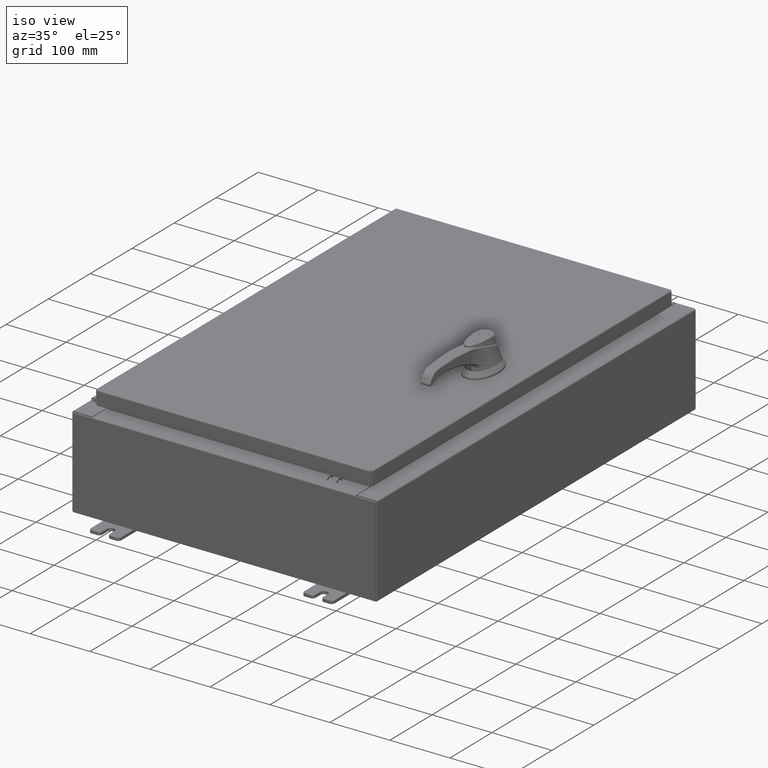
[diagram: clean part render]
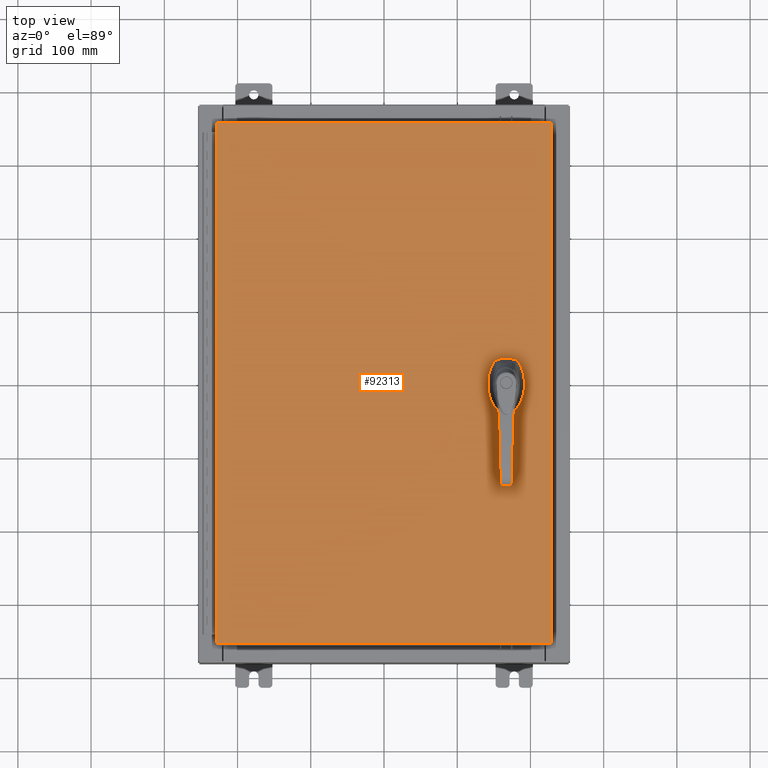
[diagram: tour spotlight — one face highlighted and labeled with its STEP entity id]
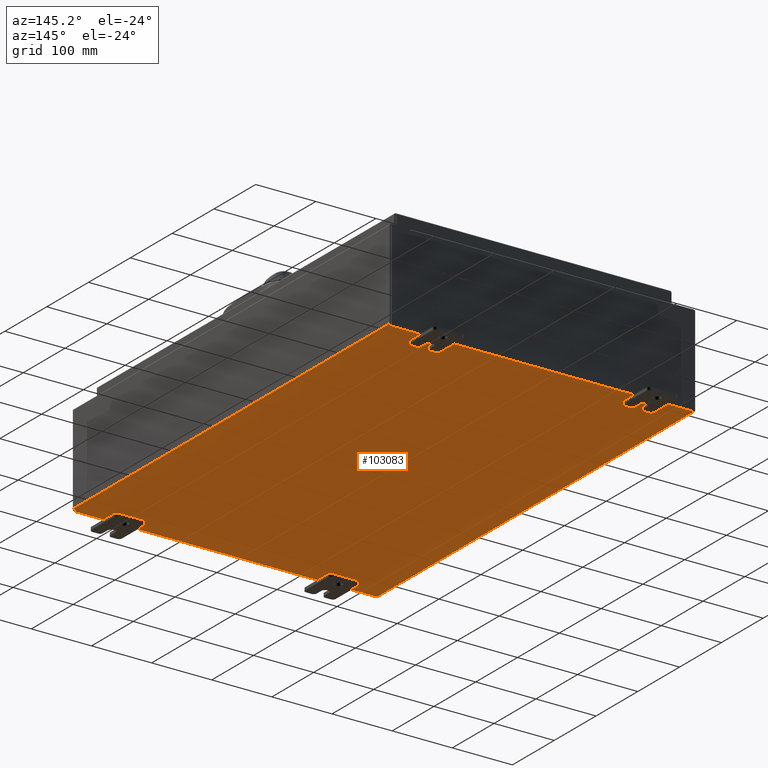
[diagram: tour spotlight — one face highlighted and labeled with its STEP entity id]
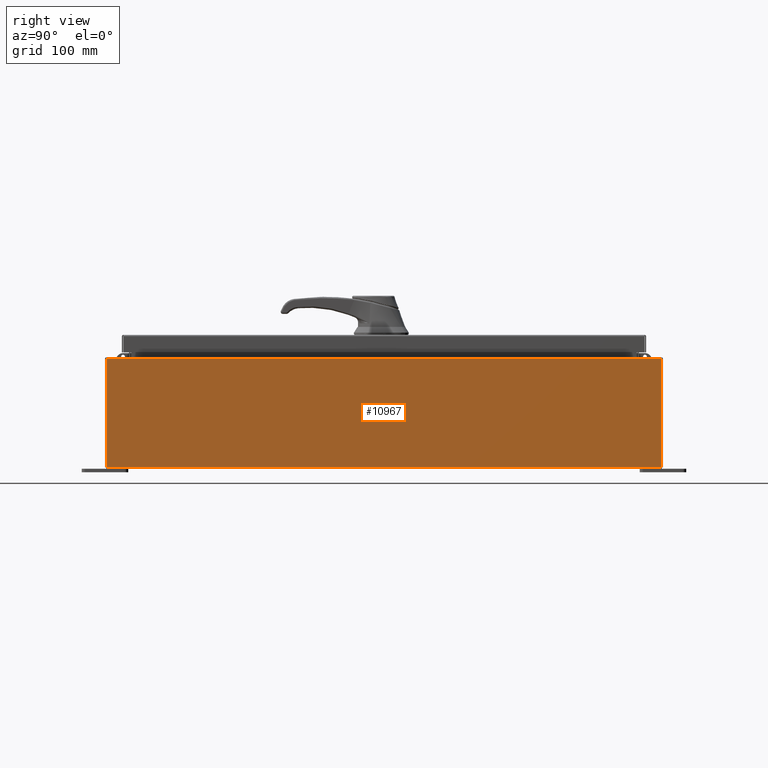
[diagram: tour spotlight — one face highlighted and labeled with its STEP entity id]
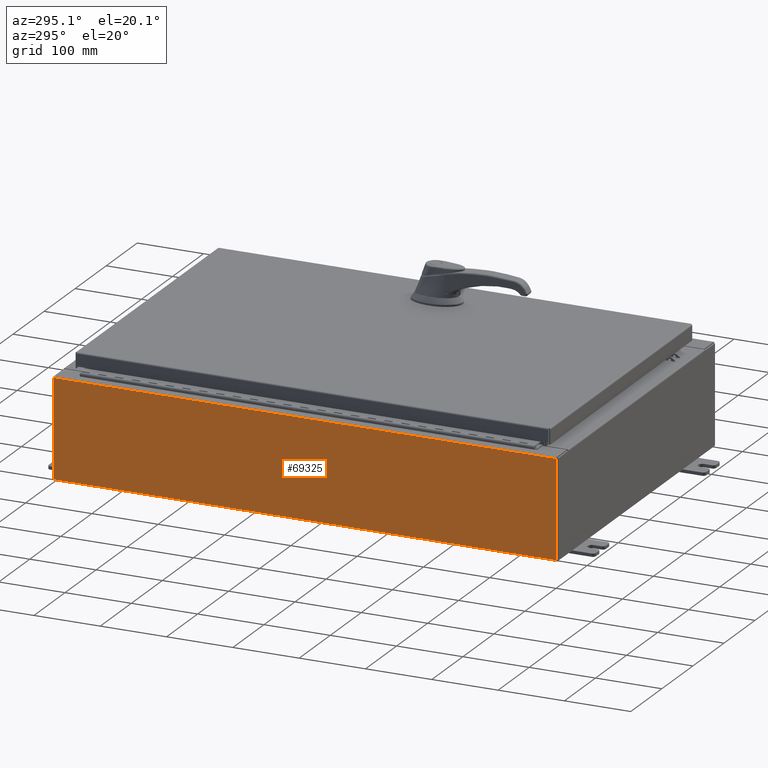
[diagram: tour spotlight — one face highlighted and labeled with its STEP entity id]
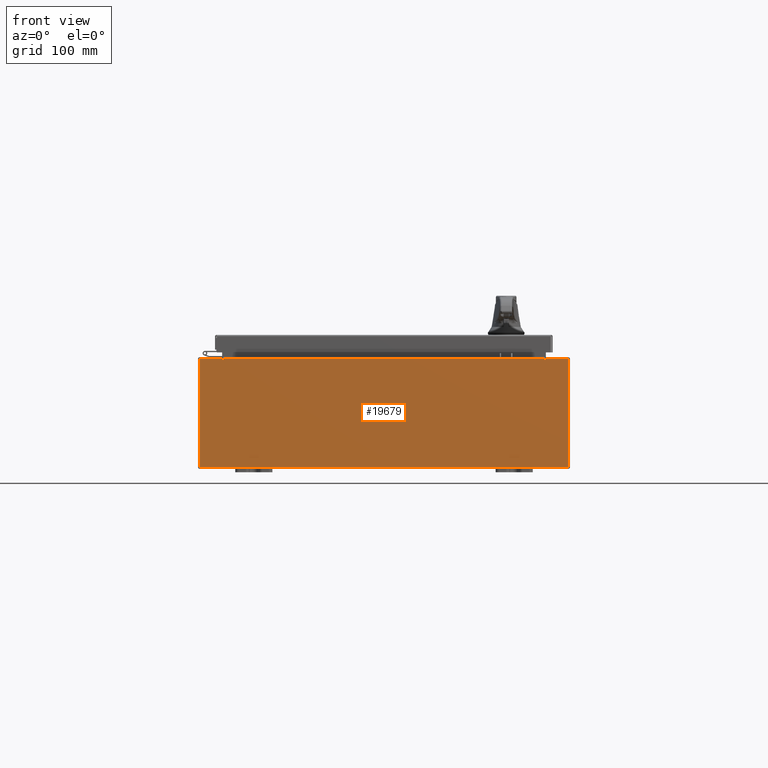
[diagram: tour spotlight — one face highlighted and labeled with its STEP entity id]
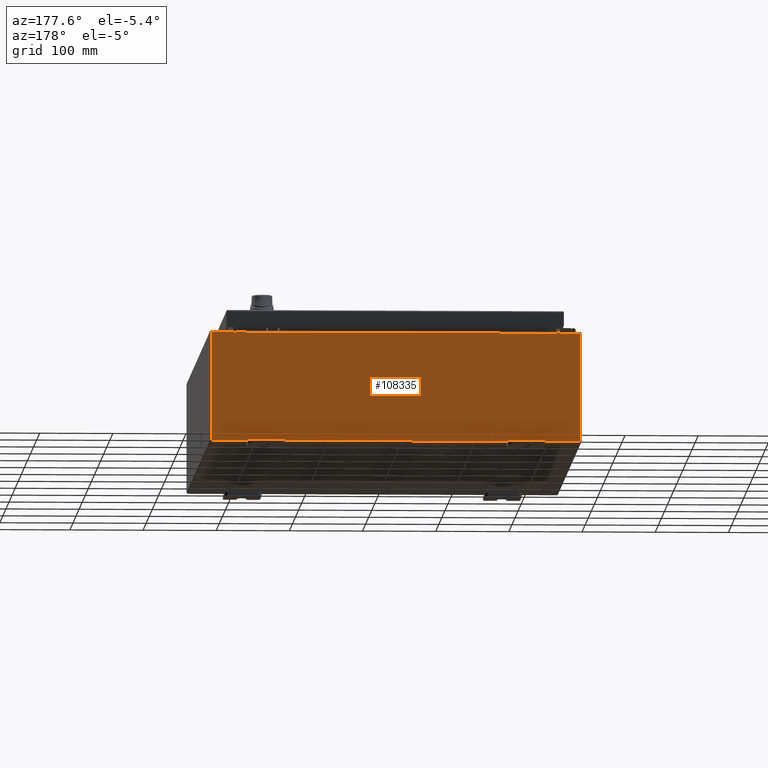
[diagram: tour spotlight — one face highlighted and labeled with its STEP entity id]
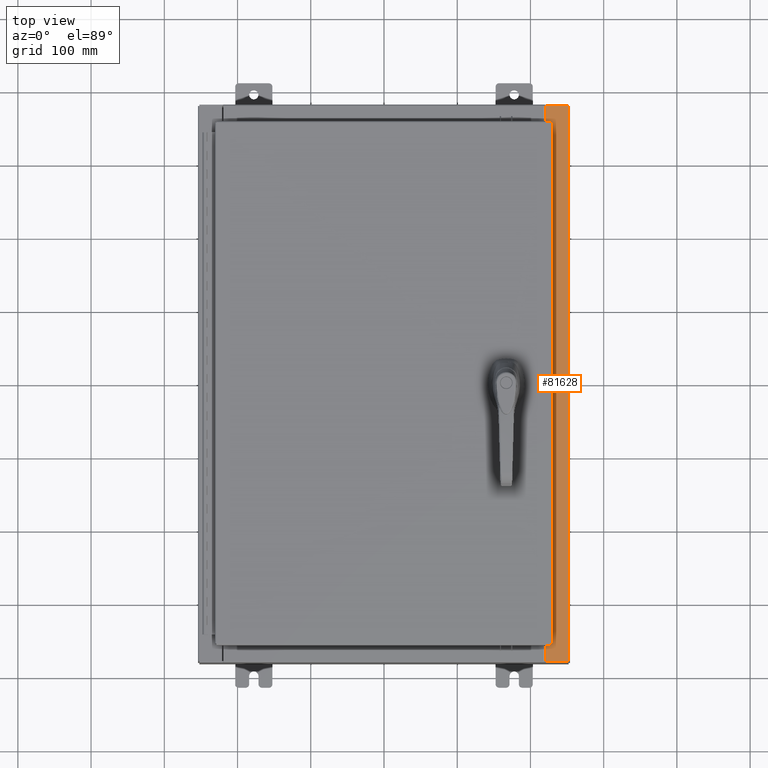
[diagram: tour spotlight — one face highlighted and labeled with its STEP entity id]
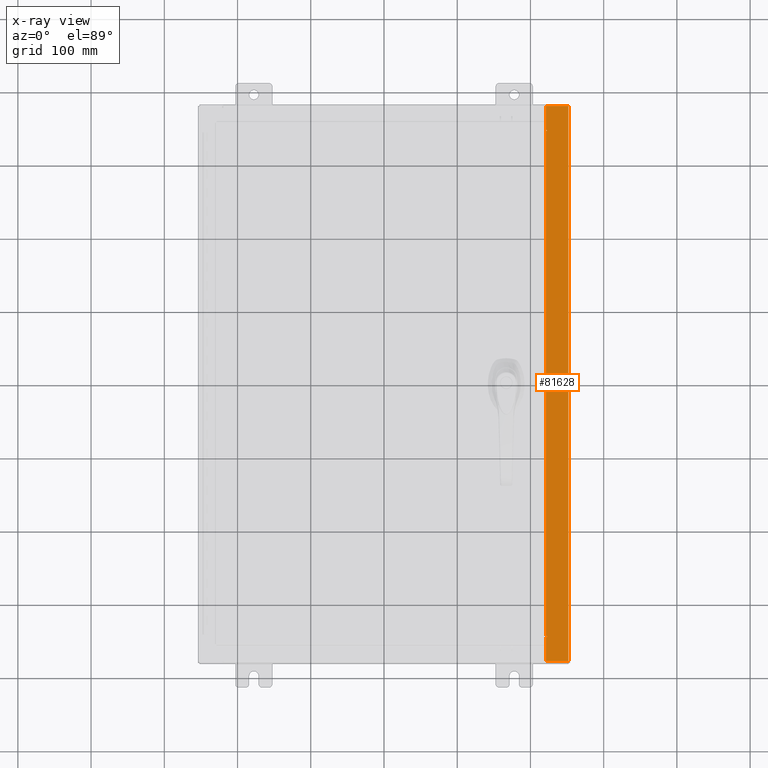
[diagram: x-ray of the same camera — body ghosted, this tour face saturated]
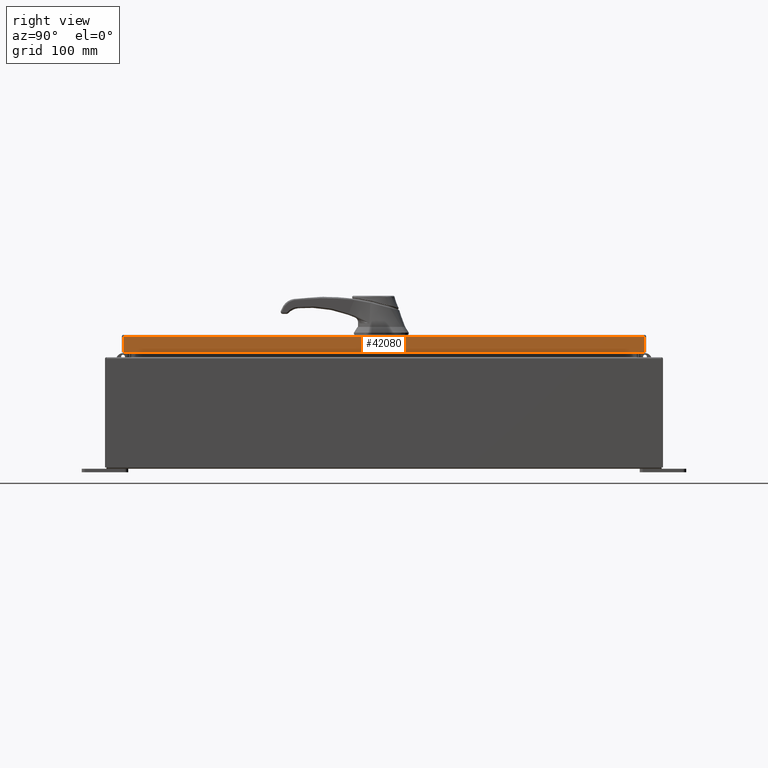
[diagram: tour spotlight — one face highlighted and labeled with its STEP entity id]
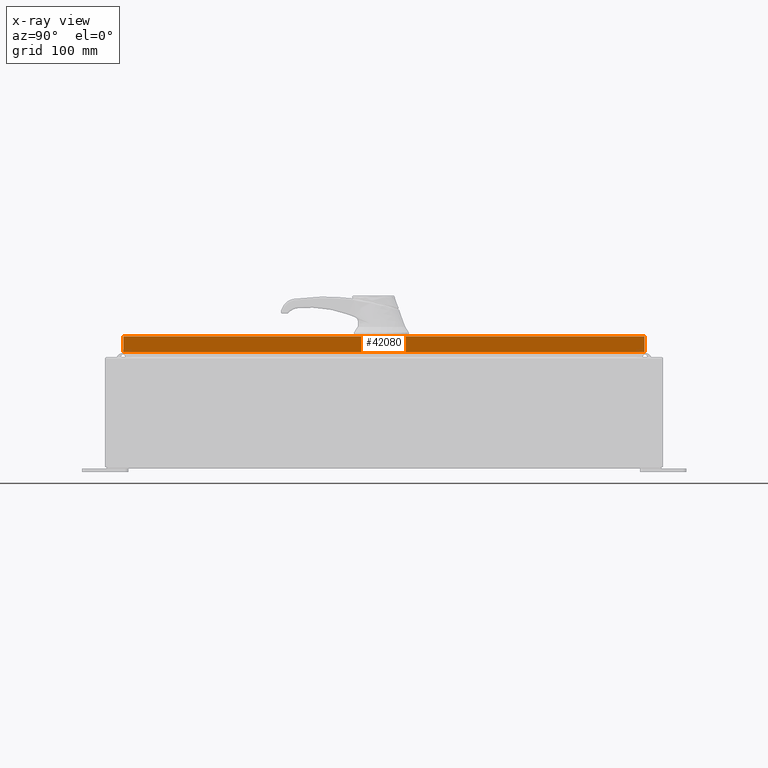
[diagram: x-ray of the same camera — body ghosted, this tour face saturated]
A machine part: a face-by-face anatomy tour. The part has 2662 B-rep faces; the first image is the clean iso view, then the 8 largest visible faces are spotlighted one at a time (largest first), each with its STEP entity span.

Face 1 — top view, entity #92313. In plain terms, the highlighted planar face has unit normal (0, 0, -1).
Definition (entity closure, byte-faithful):
#408 = VERTEX_POINT ( 'NONE', #112652 ) ;
#2011 = DIRECTION ( 'NONE',  ( -0.0000000000000000000, 0.0000000000000000000, 1.000000000000000000 ) ) ;
#2169 = CARTESIAN_POINT ( 'NONE',  ( 6.980999999999926200, -0.2002273707563079800, 0.0000000000000000000 ) ) ;
#2774 = CARTESIAN_POINT ( 'NONE',  ( 6.578000000000000300, -1.338000000000000100, 0.0000000000000000000 ) ) ;
#3681 = CARTESIAN_POINT ( 'NONE',  ( 6.377772629243691100, 0.4029999999999252000, 0.0000000000000000000 ) ) ;
#4793 = ORIENTED_EDGE ( 'NONE', *, *, #47390, .F. ) ;
#5320 = ORIENTED_EDGE ( 'NONE', *, *, #20390, .F. ) ;
#6413 = ORIENTED_EDGE ( 'NONE', *, *, #95608, .F. ) ;
#7792 = CARTESIAN_POINT ( 'NONE',  ( 6.778227370756310300, 0.4029999999999252000, 0.0000000000000000000 ) ) ;
#7912 = VERTEX_POINT ( 'NONE', #3681 ) ;
#8317 = DIRECTION ( 'NONE',  ( -0.0000000000000000000, 0.0000000000000000000, 1.000000000000000000 ) ) ;
#9418 = ORIENTED_EDGE ( 'NONE', *, *, #115220, .F. ) ;
#9870 = ORIENTED_EDGE ( 'NONE', *, *, #99384, .F. ) ;
#10960 = VECTOR ( 'NONE', #108032, 39.37007874015748100 ) ;
#11953 = DIRECTION ( 'NONE',  ( 1.000000000000000000, 0.0000000000000000000, 0.0000000000000000000 ) ) ;
#12436 = VECTOR ( 'NONE', #23749, 39.37007874015748100 ) ;
#12766 = ORIENTED_EDGE ( 'NONE', *, *, #44117, .F. ) ;
#16178 = CARTESIAN_POINT ( 'NONE',  ( 8.990300000000001300, 14.00629999999999800, -2.048885995248197400E-016 ) ) ;
#16716 = DIRECTION ( 'NONE',  ( 0.0000000000000000000, 1.000000000000000000, 0.0000000000000000000 ) ) ;
#18690 = CARTESIAN_POINT ( 'NONE',  ( 6.578000000000000300, 0.0000000000000000000, 0.0000000000000000000 ) ) ;
#19767 = VECTOR ( 'NONE', #50708, 39.37007874015748100 ) ;
#20390 = EDGE_CURVE ( 'NONE', #65203, #7912, #38294, .T. ) ;
#20872 = ORIENTED_EDGE ( 'NONE', *, *, #36748, .T. ) ;
#21153 = VECTOR ( 'NONE', #115294, 39.37007874015748100 ) ;
#22080 = VERTEX_POINT ( 'NONE', #2169 ) ;
#23749 = DIRECTION ( 'NONE',  ( 1.000000000000000000, -0.0000000000000000000, -0.0000000000000000000 ) ) ;
#24405 = FACE_OUTER_BOUND ( 'NONE', #67296, .T. ) ;
#24620 = ORIENTED_EDGE ( 'NONE', *, *, #75882, .T. ) ;
#25095 = VECTOR ( 'NONE', #65805, 39.37007874015748100 ) ;
#25775 = ORIENTED_EDGE ( 'NONE', *, *, #114407, .F. ) ;
#27416 = AXIS2_PLACEMENT_3D ( 'NONE', #56639, #2011, #65894 ) ;
#27796 = CARTESIAN_POINT ( 'NONE',  ( 8.990300000000001300, 14.00629999999999800, -2.048885995248197400E-016 ) ) ;
#27808 = DIRECTION ( 'NONE',  ( 1.000000000000000000, 0.0000000000000000000, 0.0000000000000000000 ) ) ;
#28428 = LINE ( 'NONE', #71120, #74281 ) ;
#29768 = VERTEX_POINT ( 'NONE', #27796 ) ;
#33126 = CARTESIAN_POINT ( 'NONE',  ( -8.990299999999997700, 14.00630000000000100, -2.048885995248197400E-016 ) ) ;
#34219 = CARTESIAN_POINT ( 'NONE',  ( 6.175000000000075300, 0.0000000000000000000, 0.0000000000000000000 ) ) ;
#34381 = EDGE_CURVE ( 'NONE', #408, #29768, #28428, .T. ) ;
#36240 = PLANE ( 'NONE',  #105666 ) ;
#36748 = EDGE_CURVE ( 'NONE', #61501, #408, #39539, .T. ) ;
#37326 = EDGE_CURVE ( 'NONE', #51289, #22080, #59502, .T. ) ;
#38294 = LINE ( 'NONE', #96424, #19767 ) ;
#38618 = CARTESIAN_POINT ( 'NONE',  ( 0.0000000000000000000, -0.4029999999999252000, 0.0000000000000000000 ) ) ;
#39437 = LINE ( 'NONE', #34219, #63737 ) ;
#39539 = LINE ( 'NONE', #106221, #12436 ) ;
#40234 = CARTESIAN_POINT ( 'NONE',  ( 6.578000000000000300, -1.338000000000000100, 0.0000000000000000000 ) ) ;
#40507 = CIRCLE ( 'NONE', #27416, 0.4499999999999156900 ) ;
#42613 = LINE ( 'NONE', #33126, #21153 ) ;
#44014 = CIRCLE ( 'NONE', #62785, 0.1715000000000000700 ) ;
#44117 = EDGE_CURVE ( 'NONE', #51289, #65203, #112416, .T. ) ;
#44294 = ORIENTED_EDGE ( 'NONE', *, *, #65537, .F. ) ;
#44967 = VERTEX_POINT ( 'NONE', #83655 ) ;
#45216 = VERTEX_POINT ( 'NONE', #96462 ) ;
#45463 = DIRECTION ( 'NONE',  ( -1.000000000000000000, 0.0000000000000000000, -0.0000000000000000000 ) ) ;
#47390 = EDGE_CURVE ( 'NONE', #86402, #98393, #50116, .T. ) ;
#49182 = DIRECTION ( 'NONE',  ( -0.0000000000000000000, 0.0000000000000000000, 1.000000000000000000 ) ) ;
#49413 = DIRECTION ( 'NONE',  ( 1.000000000000000000, 0.0000000000000000000, 0.0000000000000000000 ) ) ;
#50030 = AXIS2_PLACEMENT_3D ( 'NONE', #18690, #82697, #27808 ) ;
#50116 = CIRCLE ( 'NONE', #101354, 0.1715000000000000700 ) ;
#50708 = DIRECTION ( 'NONE',  ( -1.000000000000000000, 0.0000000000000000000, 0.0000000000000000000 ) ) ;
#51289 = VERTEX_POINT ( 'NONE', #80721 ) ;
#51749 = EDGE_LOOP ( 'NONE', ( #4793, #6413 ) ) ;
#55213 = EDGE_LOOP ( 'NONE', ( #112029, #44294, #9418, #25775, #9870, #98810, #5320, #12766 ) ) ;
#55814 = AXIS2_PLACEMENT_3D ( 'NONE', #62975, #8317, #72229 ) ;
#56365 = CARTESIAN_POINT ( 'NONE',  ( 6.406500000000000300, -1.338000000000000100, 0.0000000000000000000 ) ) ;
#56639 = CARTESIAN_POINT ( 'NONE',  ( 6.578000000000000300, 0.0000000000000000000, 0.0000000000000000000 ) ) ;
#59502 = LINE ( 'NONE', #116522, #10960 ) ;
#61501 = VERTEX_POINT ( 'NONE', #73565 ) ;
#62785 = AXIS2_PLACEMENT_3D ( 'NONE', #40234, #104333, #49413 ) ;
#62975 = CARTESIAN_POINT ( 'NONE',  ( 6.578000000000000300, 0.0000000000000000000, 0.0000000000000000000 ) ) ;
#63737 = VECTOR ( 'NONE', #89069, 39.37007874015748100 ) ;
#65203 = VERTEX_POINT ( 'NONE', #7792 ) ;
#65537 = EDGE_CURVE ( 'NONE', #83459, #22080, #107645, .T. ) ;
#65805 = DIRECTION ( 'NONE',  ( 1.000000000000000000, 0.0000000000000000000, 0.0000000000000000000 ) ) ;
#65894 = DIRECTION ( 'NONE',  ( 1.000000000000000000, 0.0000000000000000000, 0.0000000000000000000 ) ) ;
#66665 = DIRECTION ( 'NONE',  ( -0.0000000000000000000, 0.0000000000000000000, 1.000000000000000000 ) ) ;
#67296 = EDGE_LOOP ( 'NONE', ( #20872, #115615, #24620, #109661 ) ) ;
#69736 = EDGE_CURVE ( 'NONE', #72531, #61501, #42613, .T. ) ;
#71120 = CARTESIAN_POINT ( 'NONE',  ( 8.990300000000001300, -14.00629999999999800, -7.683322482180740400E-016 ) ) ;
#72229 = DIRECTION ( 'NONE',  ( 1.000000000000000000, 0.0000000000000000000, 0.0000000000000000000 ) ) ;
#72531 = VERTEX_POINT ( 'NONE', #75768 ) ;
#73565 = CARTESIAN_POINT ( 'NONE',  ( -8.990299999999997700, -14.00629999999999800, 1.980589795406590900E-015 ) ) ;
#74281 = VECTOR ( 'NONE', #16716, 39.37007874015748100 ) ;
#75443 = AXIS2_PLACEMENT_3D ( 'NONE', #104091, #49182, #113347 ) ;
#75768 = CARTESIAN_POINT ( 'NONE',  ( -8.990299999999997700, 14.00630000000000100, -2.048885995248197400E-016 ) ) ;
#75882 = EDGE_CURVE ( 'NONE', #29768, #72531, #114994, .T. ) ;
#80721 = CARTESIAN_POINT ( 'NONE',  ( 6.980999999999926200, 0.2002273707563080300, 0.0000000000000000000 ) ) ;
#82697 = DIRECTION ( 'NONE',  ( -0.0000000000000000000, 0.0000000000000000000, 1.000000000000000000 ) ) ;
#83459 = VERTEX_POINT ( 'NONE', #87054 ) ;
#83655 = CARTESIAN_POINT ( 'NONE',  ( 6.175000000000075300, 0.2002273707563079800, 0.0000000000000000000 ) ) ;
#84581 = FACE_BOUND ( 'NONE', #55213, .T. ) ;
#86402 = VERTEX_POINT ( 'NONE', #88250 ) ;
#87054 = CARTESIAN_POINT ( 'NONE',  ( 6.778227370756310300, -0.4029999999999252000, 0.0000000000000000000 ) ) ;
#88250 = CARTESIAN_POINT ( 'NONE',  ( 6.749500000000001200, -1.338000000000000100, 0.0000000000000000000 ) ) ;
#89069 = DIRECTION ( 'NONE',  ( 0.0000000000000000000, -1.000000000000000000, 0.0000000000000000000 ) ) ;
#91114 = CARTESIAN_POINT ( 'NONE',  ( 0.0000000000000000000, 0.0000000000000000000, 0.0000000000000000000 ) ) ;
#92313 = ADVANCED_FACE ( 'NONE', ( #94576, #24405, #84581 ), #36240, .F. ) ;
#92506 = CIRCLE ( 'NONE', #50030, 0.4499999999999156900 ) ;
#94576 = FACE_BOUND ( 'NONE', #51749, .T. ) ;
#95608 = EDGE_CURVE ( 'NONE', #98393, #86402, #44014, .T. ) ;
#96424 = CARTESIAN_POINT ( 'NONE',  ( 0.0000000000000000000, 0.4029999999999252000, 0.0000000000000000000 ) ) ;
#96462 = CARTESIAN_POINT ( 'NONE',  ( 6.175000000000075300, -0.2002273707563079800, 0.0000000000000000000 ) ) ;
#98190 = LINE ( 'NONE', #38618, #25095 ) ;
#98393 = VERTEX_POINT ( 'NONE', #56365 ) ;
#98810 = ORIENTED_EDGE ( 'NONE', *, *, #106454, .F. ) ;
#99384 = EDGE_CURVE ( 'NONE', #44967, #45216, #39437, .T. ) ;
#100363 = DIRECTION ( 'NONE',  ( 0.0000000000000000000, 0.0000000000000000000, -1.000000000000000000 ) ) ;
#101354 = AXIS2_PLACEMENT_3D ( 'NONE', #2774, #66665, #11953 ) ;
#104091 = CARTESIAN_POINT ( 'NONE',  ( 6.578000000000000300, 0.0000000000000000000, 0.0000000000000000000 ) ) ;
#104333 = DIRECTION ( 'NONE',  ( -0.0000000000000000000, 0.0000000000000000000, 1.000000000000000000 ) ) ;
#105666 = AXIS2_PLACEMENT_3D ( 'NONE', #91114, #100363, #45463 ) ;
#105930 = VERTEX_POINT ( 'NONE', #114593 ) ;
#106221 = CARTESIAN_POINT ( 'NONE',  ( -8.990299999999996000, -14.00629999999999800, 1.963515745446189200E-015 ) ) ;
#106454 = EDGE_CURVE ( 'NONE', #7912, #44967, #40507, .T. ) ;
#107645 = CIRCLE ( 'NONE', #75443, 0.4499999999999156900 ) ;
#107792 = DIRECTION ( 'NONE',  ( -1.000000000000000000, -0.0000000000000000000, -0.0000000000000000000 ) ) ;
#108032 = DIRECTION ( 'NONE',  ( 0.0000000000000000000, -1.000000000000000000, 0.0000000000000000000 ) ) ;
#109661 = ORIENTED_EDGE ( 'NONE', *, *, #69736, .T. ) ;
#112029 = ORIENTED_EDGE ( 'NONE', *, *, #37326, .T. ) ;
#112083 = VECTOR ( 'NONE', #107792, 39.37007874015748100 ) ;
#112416 = CIRCLE ( 'NONE', #55814, 0.4499999999999156900 ) ;
#112652 = CARTESIAN_POINT ( 'NONE',  ( 8.990300000000001300, -14.00629999999999800, -7.683322482180740400E-016 ) ) ;
#113347 = DIRECTION ( 'NONE',  ( 1.000000000000000000, 0.0000000000000000000, 0.0000000000000000000 ) ) ;
#114407 = EDGE_CURVE ( 'NONE', #45216, #105930, #92506, .T. ) ;
#114593 = CARTESIAN_POINT ( 'NONE',  ( 6.377772629243691100, -0.4029999999999252000, 0.0000000000000000000 ) ) ;
#114994 = LINE ( 'NONE', #16178, #112083 ) ;
#115220 = EDGE_CURVE ( 'NONE', #105930, #83459, #98190, .T. ) ;
#115294 = DIRECTION ( 'NONE',  ( 0.0000000000000000000, -1.000000000000000000, 0.0000000000000000000 ) ) ;
#115615 = ORIENTED_EDGE ( 'NONE', *, *, #34381, .T. ) ;
#116522 = CARTESIAN_POINT ( 'NONE',  ( 6.980999999999926200, 0.0000000000000000000, 0.0000000000000000000 ) ) ;

Face 2 — auxiliary view, entity #103083. In plain terms, the highlighted planar face has unit normal (0, 0, -1).
Definition (entity closure, byte-faithful):
#624 = ORIENTED_EDGE ( 'NONE', *, *, #12975, .F. ) ;
#4138 = VERTEX_POINT ( 'NONE', #57283 ) ;
#4984 = DIRECTION ( 'NONE',  ( 0.0000000000000000000, 0.0000000000000000000, -1.000000000000000000 ) ) ;
#10769 = VECTOR ( 'NONE', #106428, 39.37007874015748100 ) ;
#11999 = VECTOR ( 'NONE', #24792, 39.37007874015748100 ) ;
#12975 = EDGE_CURVE ( 'NONE', #4138, #89778, #111224, .T. ) ;
#19778 = DIRECTION ( 'NONE',  ( -0.0000000000000000000, -1.000000000000000000, -0.0000000000000000000 ) ) ;
#23300 = CARTESIAN_POINT ( 'NONE',  ( 0.0000000000000000000, 0.0000000000000000000, -0.07470000000000000300 ) ) ;
#24792 = DIRECTION ( 'NONE',  ( -0.0000000000000000000, 1.000000000000000000, -0.0000000000000000000 ) ) ;
#27576 = ORIENTED_EDGE ( 'NONE', *, *, #72438, .T. ) ;
#28351 = ORIENTED_EDGE ( 'NONE', *, *, #62392, .F. ) ;
#28903 = CARTESIAN_POINT ( 'NONE',  ( 9.912300000000000100, 14.92530000000000500, -0.07469999999999994700 ) ) ;
#29524 = AXIS2_PLACEMENT_3D ( 'NONE', #23300, #4984, #105775 ) ;
#34975 = LINE ( 'NONE', #97259, #10769 ) ;
#35868 = CARTESIAN_POINT ( 'NONE',  ( -9.912300000000000100, -14.92529999999999600, -0.07469999999999994700 ) ) ;
#41000 = DIRECTION ( 'NONE',  ( -1.000000000000000000, -0.0000000000000000000, -0.0000000000000000000 ) ) ;
#42185 = VECTOR ( 'NONE', #19778, 39.37007874015748100 ) ;
#42817 = CARTESIAN_POINT ( 'NONE',  ( -9.912300000000000100, -14.92529999999999600, -0.07469999999999994700 ) ) ;
#57190 = CARTESIAN_POINT ( 'NONE',  ( -10.00000000000000000, 14.92530000000000500, -0.07470000000000000300 ) ) ;
#57283 = CARTESIAN_POINT ( 'NONE',  ( 9.912300000000000100, 14.92530000000000500, -0.07469999999999994700 ) ) ;
#59519 = FACE_OUTER_BOUND ( 'NONE', #101700, .T. ) ;
#62392 = EDGE_CURVE ( 'NONE', #92287, #117775, #34975, .T. ) ;
#72438 = EDGE_CURVE ( 'NONE', #4138, #117775, #112401, .T. ) ;
#86859 = VECTOR ( 'NONE', #41000, 39.37007874015748100 ) ;
#89778 = VERTEX_POINT ( 'NONE', #96343 ) ;
#92287 = VERTEX_POINT ( 'NONE', #35868 ) ;
#96343 = CARTESIAN_POINT ( 'NONE',  ( -9.912300000000000100, 14.92530000000000500, -0.07470000000000000300 ) ) ;
#96576 = PLANE ( 'NONE',  #29524 ) ;
#97259 = CARTESIAN_POINT ( 'NONE',  ( -10.00000000000000000, -14.92529999999999600, -0.07470000000000000300 ) ) ;
#100490 = CARTESIAN_POINT ( 'NONE',  ( 9.912300000000000100, -14.92529999999999600, -0.07470000000000000300 ) ) ;
#101167 = ORIENTED_EDGE ( 'NONE', *, *, #106056, .T. ) ;
#101700 = EDGE_LOOP ( 'NONE', ( #28351, #101167, #624, #27576 ) ) ;
#103083 = ADVANCED_FACE ( 'NONE', ( #59519 ), #96576, .T. ) ;
#105775 = DIRECTION ( 'NONE',  ( -1.000000000000000000, 0.0000000000000000000, -0.0000000000000000000 ) ) ;
#106056 = EDGE_CURVE ( 'NONE', #92287, #89778, #106477, .T. ) ;
#106428 = DIRECTION ( 'NONE',  ( 1.000000000000000000, 0.0000000000000000000, 0.0000000000000000000 ) ) ;
#106477 = LINE ( 'NONE', #42817, #11999 ) ;
#111224 = LINE ( 'NONE', #57190, #86859 ) ;
#112401 = LINE ( 'NONE', #28903, #42185 ) ;
#117775 = VERTEX_POINT ( 'NONE', #100490 ) ;

Face 3 — right view, entity #10967. In plain terms, the highlighted planar face has unit normal (-1, 0, 0).
Definition (entity closure, byte-faithful):
#263 = CARTESIAN_POINT ( 'NONE',  ( 10.00000000000000000, 14.92530000000000500, -3.345627304943080600E-014 ) ) ;
#3682 = LINE ( 'NONE', #6247, #70900 ) ;
#6247 = CARTESIAN_POINT ( 'NONE',  ( 10.00000000000002000, 14.92530000000000700, 5.837600000000001000 ) ) ;
#10967 = ADVANCED_FACE ( 'NONE', ( #25481 ), #99626, .F. ) ;
#13868 = CARTESIAN_POINT ( 'NONE',  ( 10.00000000000000000, 14.92530000000000500, 0.01299999999999986400 ) ) ;
#15100 = LINE ( 'NONE', #32825, #88079 ) ;
#15394 = DIRECTION ( 'NONE',  ( -0.0000000000000000000, -1.000000000000000000, -0.0000000000000000000 ) ) ;
#17307 = VECTOR ( 'NONE', #65758, 39.37007874015748100 ) ;
#25481 = FACE_OUTER_BOUND ( 'NONE', #106049, .T. ) ;
#26047 = LINE ( 'NONE', #263, #117815 ) ;
#28667 = VERTEX_POINT ( 'NONE', #84136 ) ;
#32825 = CARTESIAN_POINT ( 'NONE',  ( 10.00000000000000000, -14.92529999999999600, 0.01299999999999986400 ) ) ;
#56503 = CARTESIAN_POINT ( 'NONE',  ( 10.00000000000000000, -14.92529999999999600, -3.345627304943080600E-014 ) ) ;
#61828 = ORIENTED_EDGE ( 'NONE', *, *, #77781, .T. ) ;
#62204 = ORIENTED_EDGE ( 'NONE', *, *, #72059, .T. ) ;
#64143 = DIRECTION ( 'NONE',  ( 3.319545939341922800E-015, 0.0000000000000000000, 1.000000000000000000 ) ) ;
#65758 = DIRECTION ( 'NONE',  ( -3.319545939341922800E-015, 0.0000000000000000000, -1.000000000000000000 ) ) ;
#70900 = VECTOR ( 'NONE', #15394, 39.37007874015748100 ) ;
#72059 = EDGE_CURVE ( 'NONE', #28667, #108215, #3682, .T. ) ;
#77781 = EDGE_CURVE ( 'NONE', #83434, #28667, #26047, .T. ) ;
#81877 = DIRECTION ( 'NONE',  ( 3.319545939341922000E-015, 0.0000000000000000000, 1.000000000000000000 ) ) ;
#82982 = CARTESIAN_POINT ( 'NONE',  ( 10.00000000000000000, -14.92529999999999600, 0.01299999999999985900 ) ) ;
#83434 = VERTEX_POINT ( 'NONE', #13868 ) ;
#84136 = CARTESIAN_POINT ( 'NONE',  ( 10.00000000000002000, 14.92530000000000700, 5.837600000000001000 ) ) ;
#85608 = AXIS2_PLACEMENT_3D ( 'NONE', #90695, #106136, #81877 ) ;
#87689 = DIRECTION ( 'NONE',  ( -0.0000000000000000000, -1.000000000000000000, -0.0000000000000000000 ) ) ;
#88079 = VECTOR ( 'NONE', #87689, 39.37007874015748100 ) ;
#90695 = CARTESIAN_POINT ( 'NONE',  ( 10.00000000000000000, 0.0000000000000000000, -3.345627304943080600E-014 ) ) ;
#95988 = CARTESIAN_POINT ( 'NONE',  ( 10.00000000000002000, -14.92529999999999800, 5.837600000000001000 ) ) ;
#98920 = LINE ( 'NONE', #56503, #17307 ) ;
#99451 = ORIENTED_EDGE ( 'NONE', *, *, #104310, .F. ) ;
#99626 = PLANE ( 'NONE',  #85608 ) ;
#104310 = EDGE_CURVE ( 'NONE', #83434, #113949, #15100, .T. ) ;
#106049 = EDGE_LOOP ( 'NONE', ( #62204, #114816, #99451, #61828 ) ) ;
#106136 = DIRECTION ( 'NONE',  ( -1.000000000000000000, 0.0000000000000000000, 3.319545939341922000E-015 ) ) ;
#108215 = VERTEX_POINT ( 'NONE', #95988 ) ;
#110639 = EDGE_CURVE ( 'NONE', #108215, #113949, #98920, .T. ) ;
#113949 = VERTEX_POINT ( 'NONE', #82982 ) ;
#114816 = ORIENTED_EDGE ( 'NONE', *, *, #110639, .T. ) ;
#117815 = VECTOR ( 'NONE', #64143, 39.37007874015748100 ) ;

Face 4 — auxiliary view, entity #69325. In plain terms, the highlighted planar face has unit normal (1, 0, 0).
Definition (entity closure, byte-faithful):
#360 = CARTESIAN_POINT ( 'NONE',  ( -10.00000000000001800, -14.92529999999999600, 5.837599999999999200 ) ) ;
#3017 = LINE ( 'NONE', #72334, #70251 ) ;
#7204 = CARTESIAN_POINT ( 'NONE',  ( -10.00000000000001800, -14.92529999999999600, 5.837599999999999200 ) ) ;
#10129 = DIRECTION ( 'NONE',  ( 3.319545939341922800E-015, 0.0000000000000000000, -1.000000000000000000 ) ) ;
#10425 = ORIENTED_EDGE ( 'NONE', *, *, #81702, .F. ) ;
#15850 = DIRECTION ( 'NONE',  ( 3.319545939341922800E-015, 0.0000000000000000000, -1.000000000000000000 ) ) ;
#16330 = ORIENTED_EDGE ( 'NONE', *, *, #92312, .T. ) ;
#22746 = EDGE_LOOP ( 'NONE', ( #44838, #42826, #10425, #16330 ) ) ;
#23642 = LINE ( 'NONE', #33733, #118203 ) ;
#27081 = DIRECTION ( 'NONE',  ( -3.319545939341922800E-015, 0.0000000000000000000, 1.000000000000000000 ) ) ;
#33733 = CARTESIAN_POINT ( 'NONE',  ( -10.00000000000000000, 14.92530000000000500, -3.345627304943080600E-014 ) ) ;
#36613 = DIRECTION ( 'NONE',  ( 0.0000000000000000000, 1.000000000000000000, 0.0000000000000000000 ) ) ;
#37528 = CARTESIAN_POINT ( 'NONE',  ( -10.00000000000002000, 14.92530000000000500, 5.837599999999999200 ) ) ;
#42528 = CARTESIAN_POINT ( 'NONE',  ( -10.00000000000000000, 14.92530000000000500, 0.01299999999999985900 ) ) ;
#42826 = ORIENTED_EDGE ( 'NONE', *, *, #56559, .T. ) ;
#44838 = ORIENTED_EDGE ( 'NONE', *, *, #84164, .T. ) ;
#48512 = CARTESIAN_POINT ( 'NONE',  ( -10.00000000000000000, 14.92530000000000500, 0.01299999999999986400 ) ) ;
#53190 = VERTEX_POINT ( 'NONE', #37528 ) ;
#54188 = VECTOR ( 'NONE', #36613, 39.37007874015748100 ) ;
#54274 = VECTOR ( 'NONE', #84955, 39.37007874015748100 ) ;
#55122 = CARTESIAN_POINT ( 'NONE',  ( -10.00000000000000000, 0.0000000000000000000, -3.345627304943080600E-014 ) ) ;
#56008 = VERTEX_POINT ( 'NONE', #7204 ) ;
#56348 = AXIS2_PLACEMENT_3D ( 'NONE', #55122, #64783, #10129 ) ;
#56559 = EDGE_CURVE ( 'NONE', #53190, #88616, #23642, .T. ) ;
#64783 = DIRECTION ( 'NONE',  ( 1.000000000000000000, 0.0000000000000000000, 3.319545939341922800E-015 ) ) ;
#69325 = ADVANCED_FACE ( 'NONE', ( #89920 ), #92043, .F. ) ;
#70251 = VECTOR ( 'NONE', #27081, 39.37007874015748100 ) ;
#72334 = CARTESIAN_POINT ( 'NONE',  ( -10.00000000000000000, -14.92529999999999600, -3.345627304943080600E-014 ) ) ;
#81484 = LINE ( 'NONE', #360, #54188 ) ;
#81702 = EDGE_CURVE ( 'NONE', #106020, #88616, #103111, .T. ) ;
#84164 = EDGE_CURVE ( 'NONE', #56008, #53190, #81484, .T. ) ;
#84955 = DIRECTION ( 'NONE',  ( -0.0000000000000000000, 1.000000000000000000, -0.0000000000000000000 ) ) ;
#88616 = VERTEX_POINT ( 'NONE', #42528 ) ;
#89920 = FACE_OUTER_BOUND ( 'NONE', #22746, .T. ) ;
#92043 = PLANE ( 'NONE',  #56348 ) ;
#92312 = EDGE_CURVE ( 'NONE', #106020, #56008, #3017, .T. ) ;
#103111 = LINE ( 'NONE', #48512, #54274 ) ;
#106020 = VERTEX_POINT ( 'NONE', #116171 ) ;
#116171 = CARTESIAN_POINT ( 'NONE',  ( -10.00000000000000000, -14.92529999999999600, 0.01299999999999986400 ) ) ;
#118203 = VECTOR ( 'NONE', #15850, 39.37007874015748100 ) ;

Face 5 — front view, entity #19679. In plain terms, the highlighted planar face has unit normal (-0, 1, -0).
Definition (entity closure, byte-faithful):
#642 = ORIENTED_EDGE ( 'NONE', *, *, #18608, .T. ) ;
#795 = LINE ( 'NONE', #53493, #89478 ) ;
#1035 = DIRECTION ( 'NONE',  ( 1.000000000000000000, 0.0000000000000000000, 0.0000000000000000000 ) ) ;
#1354 = DIRECTION ( 'NONE',  ( 0.0000000000000000000, 0.0000000000000000000, -1.000000000000000000 ) ) ;
#3129 = DIRECTION ( 'NONE',  ( 0.0000000000000000000, -0.0000000000000000000, -1.000000000000000000 ) ) ;
#5804 = VERTEX_POINT ( 'NONE', #92094 ) ;
#9298 = CIRCLE ( 'NONE', #43150, 0.01867500000000003900 ) ;
#9972 = CARTESIAN_POINT ( 'NONE',  ( -8.674549999999996400, 0.0000000000000000000, 2.925300000000000500 ) ) ;
#14309 = VECTOR ( 'NONE', #105588, 39.37007874015748100 ) ;
#16758 = EDGE_CURVE ( 'NONE', #105485, #79646, #96130, .T. ) ;
#16825 = DIRECTION ( 'NONE',  ( 0.0000000000000000000, 0.0000000000000000000, 1.000000000000000000 ) ) ;
#17677 = CARTESIAN_POINT ( 'NONE',  ( -9.925300000000000000, 0.0000000000000000000, 2.925300000000000500 ) ) ;
#17715 = CARTESIAN_POINT ( 'NONE',  ( 8.637200000000000000, 0.0000000000000000000, 2.912300000000000600 ) ) ;
#17995 = EDGE_CURVE ( 'NONE', #79646, #19476, #45731, .T. ) ;
#18608 = EDGE_CURVE ( 'NONE', #111476, #57077, #108757, .T. ) ;
#19476 = VERTEX_POINT ( 'NONE', #9972 ) ;
#19679 = ADVANCED_FACE ( 'NONE', ( #54082 ), #39410, .F. ) ;
#21824 = ORIENTED_EDGE ( 'NONE', *, *, #33087, .F. ) ;
#24402 = CARTESIAN_POINT ( 'NONE',  ( 8.637200000000000000, 0.0000000000000000000, 2.874950000000000600 ) ) ;
#24433 = VERTEX_POINT ( 'NONE', #46358 ) ;
#24579 = DIRECTION ( 'NONE',  ( 0.0000000000000000000, 0.0000000000000000000, -1.000000000000000000 ) ) ;
#24955 = CARTESIAN_POINT ( 'NONE',  ( 9.925300000000000000, 0.0000000000000000000, 2.925300000000000500 ) ) ;
#31985 = VECTOR ( 'NONE', #1035, 39.37007874015748100 ) ;
#33087 = EDGE_CURVE ( 'NONE', #98731, #46259, #795, .T. ) ;
#33254 = VECTOR ( 'NONE', #24579, 39.37007874015748100 ) ;
#33665 = CARTESIAN_POINT ( 'NONE',  ( -9.925300000000000000, 0.0000000000000000000, 2.925300000000000500 ) ) ;
#33731 = EDGE_CURVE ( 'NONE', #5804, #98731, #9298, .T. ) ;
#34902 = CARTESIAN_POINT ( 'NONE',  ( -8.674549999999996400, 0.0000000000000000000, 2.874950000000000600 ) ) ;
#36057 = DIRECTION ( 'NONE',  ( -1.000000000000000000, -0.0000000000000000000, -0.0000000000000000000 ) ) ;
#37017 = CARTESIAN_POINT ( 'NONE',  ( 8.674550000000001800, 0.0000000000000000000, 2.925300000000000500 ) ) ;
#39410 = PLANE ( 'NONE',  #85217 ) ;
#40098 = ORIENTED_EDGE ( 'NONE', *, *, #83489, .F. ) ;
#40270 = EDGE_CURVE ( 'NONE', #24433, #46259, #80679, .T. ) ;
#41360 = EDGE_CURVE ( 'NONE', #107624, #111356, #53936, .T. ) ;
#41510 = CARTESIAN_POINT ( 'NONE',  ( -9.925300000000000000, 0.0000000000000000000, 2.925300000000000500 ) ) ;
#43150 = AXIS2_PLACEMENT_3D ( 'NONE', #110950, #55942, #1354 ) ;
#44074 = EDGE_CURVE ( 'NONE', #111476, #5804, #90863, .T. ) ;
#45019 = CARTESIAN_POINT ( 'NONE',  ( -9.925300000000000000, 0.0000000000000000000, -2.925299999999999600 ) ) ;
#45731 = LINE ( 'NONE', #101743, #70151 ) ;
#46259 = VERTEX_POINT ( 'NONE', #17715 ) ;
#46358 = CARTESIAN_POINT ( 'NONE',  ( -8.637199999999996400, 1.024442997624098700E-016, 2.912300000000000600 ) ) ;
#46737 = CARTESIAN_POINT ( 'NONE',  ( -8.655874999999996400, 0.0000000000000000000, 2.874950000000000600 ) ) ;
#49070 = ORIENTED_EDGE ( 'NONE', *, *, #107122, .T. ) ;
#49248 = CARTESIAN_POINT ( 'NONE',  ( 9.925300000000000000, 0.0000000000000000000, -2.925299999999999600 ) ) ;
#50518 = CARTESIAN_POINT ( 'NONE',  ( -8.637199999999996400, -0.0000000000000000000, 2.874950000000000600 ) ) ;
#53493 = CARTESIAN_POINT ( 'NONE',  ( 8.637200000000000000, 0.0000000000000000000, 0.0000000000000000000 ) ) ;
#53936 = LINE ( 'NONE', #100174, #78382 ) ;
#54082 = FACE_OUTER_BOUND ( 'NONE', #68428, .T. ) ;
#55849 = DIRECTION ( 'NONE',  ( 0.0000000000000000000, 0.0000000000000000000, -1.000000000000000000 ) ) ;
#55942 = DIRECTION ( 'NONE',  ( -0.0000000000000000000, 1.000000000000000000, -0.0000000000000000000 ) ) ;
#56405 = CARTESIAN_POINT ( 'NONE',  ( 9.925300000000000000, 0.0000000000000000000, 2.925300000000000500 ) ) ;
#57077 = VERTEX_POINT ( 'NONE', #56405 ) ;
#57759 = DIRECTION ( 'NONE',  ( 0.0000000000000000000, -1.000000000000000000, 0.0000000000000000000 ) ) ;
#58897 = VECTOR ( 'NONE', #77281, 39.37007874015748100 ) ;
#60224 = ORIENTED_EDGE ( 'NONE', *, *, #67629, .T. ) ;
#67629 = EDGE_CURVE ( 'NONE', #88654, #19476, #74432, .T. ) ;
#68428 = EDGE_LOOP ( 'NONE', ( #100930, #109650, #40098, #105112, #21824, #69639, #109644, #642, #49070, #83656, #74132, #60224 ) ) ;
#69426 = VECTOR ( 'NONE', #85989, 39.37007874015748100 ) ;
#69639 = ORIENTED_EDGE ( 'NONE', *, *, #33731, .F. ) ;
#70151 = VECTOR ( 'NONE', #102128, 39.37007874015748100 ) ;
#70532 = AXIS2_PLACEMENT_3D ( 'NONE', #46737, #110848, #55849 ) ;
#71581 = VECTOR ( 'NONE', #91245, 39.37007874015748100 ) ;
#74132 = ORIENTED_EDGE ( 'NONE', *, *, #90950, .T. ) ;
#74432 = LINE ( 'NONE', #17677, #71581 ) ;
#75889 = VECTOR ( 'NONE', #115925, 39.37007874015748100 ) ;
#76003 = CARTESIAN_POINT ( 'NONE',  ( 8.674549999999813500, -0.0000000000000000000, -5.647877341832707700E-013 ) ) ;
#77281 = DIRECTION ( 'NONE',  ( -0.0000000000000000000, -0.0000000000000000000, 1.000000000000000000 ) ) ;
#78382 = VECTOR ( 'NONE', #36057, 39.37007874015748100 ) ;
#79646 = VERTEX_POINT ( 'NONE', #34902 ) ;
#80679 = LINE ( 'NONE', #110640, #31985 ) ;
#81952 = LINE ( 'NONE', #24955, #33254 ) ;
#83489 = EDGE_CURVE ( 'NONE', #24433, #105485, #103120, .T. ) ;
#83656 = ORIENTED_EDGE ( 'NONE', *, *, #41360, .T. ) ;
#85217 = AXIS2_PLACEMENT_3D ( 'NONE', #112769, #57759, #3129 ) ;
#85989 = DIRECTION ( 'NONE',  ( -6.510859170600007400E-014, 0.0000000000000000000, -1.000000000000000000 ) ) ;
#88654 = VERTEX_POINT ( 'NONE', #33665 ) ;
#89478 = VECTOR ( 'NONE', #16825, 39.37007874015748100 ) ;
#90863 = LINE ( 'NONE', #76003, #69426 ) ;
#90950 = EDGE_CURVE ( 'NONE', #111356, #88654, #104835, .T. ) ;
#91245 = DIRECTION ( 'NONE',  ( 1.000000000000000000, 0.0000000000000000000, 0.0000000000000000000 ) ) ;
#92094 = CARTESIAN_POINT ( 'NONE',  ( 8.674550000000000000, 0.0000000000000000000, 2.874950000000000600 ) ) ;
#96130 = CIRCLE ( 'NONE', #70532, 0.01867500000000003900 ) ;
#98731 = VERTEX_POINT ( 'NONE', #24402 ) ;
#100174 = CARTESIAN_POINT ( 'NONE',  ( -9.925300000000000000, 0.0000000000000000000, -2.925299999999999600 ) ) ;
#100930 = ORIENTED_EDGE ( 'NONE', *, *, #17995, .F. ) ;
#101743 = CARTESIAN_POINT ( 'NONE',  ( -8.674549999999996400, -0.0000000000000000000, 0.0000000000000000000 ) ) ;
#102128 = DIRECTION ( 'NONE',  ( 0.0000000000000000000, 0.0000000000000000000, 1.000000000000000000 ) ) ;
#103120 = LINE ( 'NONE', #106636, #75889 ) ;
#104835 = LINE ( 'NONE', #112993, #58897 ) ;
#105112 = ORIENTED_EDGE ( 'NONE', *, *, #40270, .T. ) ;
#105485 = VERTEX_POINT ( 'NONE', #50518 ) ;
#105588 = DIRECTION ( 'NONE',  ( 1.000000000000000000, 0.0000000000000000000, 0.0000000000000000000 ) ) ;
#106636 = CARTESIAN_POINT ( 'NONE',  ( -8.637199999999996400, -0.0000000000000000000, 0.0000000000000000000 ) ) ;
#107122 = EDGE_CURVE ( 'NONE', #57077, #107624, #81952, .T. ) ;
#107624 = VERTEX_POINT ( 'NONE', #49248 ) ;
#108757 = LINE ( 'NONE', #41510, #14309 ) ;
#109644 = ORIENTED_EDGE ( 'NONE', *, *, #44074, .F. ) ;
#109650 = ORIENTED_EDGE ( 'NONE', *, *, #16758, .F. ) ;
#110640 = CARTESIAN_POINT ( 'NONE',  ( -8.637200000000000000, 1.024442997624098700E-016, 2.912300000000000600 ) ) ;
#110848 = DIRECTION ( 'NONE',  ( -0.0000000000000000000, 1.000000000000000000, -0.0000000000000000000 ) ) ;
#110950 = CARTESIAN_POINT ( 'NONE',  ( 8.655875000000000000, 0.0000000000000000000, 2.874950000000000600 ) ) ;
#111356 = VERTEX_POINT ( 'NONE', #45019 ) ;
#111476 = VERTEX_POINT ( 'NONE', #37017 ) ;
#112769 = CARTESIAN_POINT ( 'NONE',  ( 0.0000000000000000000, 0.0000000000000000000, 0.0000000000000000000 ) ) ;
#112993 = CARTESIAN_POINT ( 'NONE',  ( -9.925300000000000000, 0.0000000000000000000, 2.925300000000000500 ) ) ;
#115925 = DIRECTION ( 'NONE',  ( 0.0000000000000000000, 0.0000000000000000000, -1.000000000000000000 ) ) ;

Face 6 — auxiliary view, entity #108335. In plain terms, the highlighted planar face has unit normal (0, -1, 0).
Definition (entity closure, byte-faithful):
#1325 = LINE ( 'NONE', #67563, #68524 ) ;
#1406 = LINE ( 'NONE', #116540, #116155 ) ;
#2375 = CARTESIAN_POINT ( 'NONE',  ( -8.674549999999996400, 0.0000000000000000000, 2.925300000000000500 ) ) ;
#6446 = VECTOR ( 'NONE', #114764, 39.37007874015748100 ) ;
#7941 = ORIENTED_EDGE ( 'NONE', *, *, #104909, .F. ) ;
#7962 = CARTESIAN_POINT ( 'NONE',  ( -8.655874999999996400, 0.0000000000000000000, 2.874950000000000600 ) ) ;
#10854 = LINE ( 'NONE', #89110, #32209 ) ;
#11230 = CARTESIAN_POINT ( 'NONE',  ( 8.637200000000000000, 0.0000000000000000000, 0.0000000000000000000 ) ) ;
#11733 = ORIENTED_EDGE ( 'NONE', *, *, #84861, .F. ) ;
#12471 = ORIENTED_EDGE ( 'NONE', *, *, #72741, .T. ) ;
#12843 = DIRECTION ( 'NONE',  ( 0.0000000000000000000, 0.0000000000000000000, -1.000000000000000000 ) ) ;
#13588 = EDGE_CURVE ( 'NONE', #100670, #31735, #49473, .T. ) ;
#14365 = CARTESIAN_POINT ( 'NONE',  ( -9.925300000000000000, 0.0000000000000000000, 2.925300000000000500 ) ) ;
#14403 = VECTOR ( 'NONE', #81144, 39.37007874015748100 ) ;
#14534 = CARTESIAN_POINT ( 'NONE',  ( -8.637200000000000000, 1.024442997624098700E-016, 2.912300000000000600 ) ) ;
#17772 = AXIS2_PLACEMENT_3D ( 'NONE', #27848, #91903, #37040 ) ;
#18981 = VERTEX_POINT ( 'NONE', #77810 ) ;
#19430 = EDGE_CURVE ( 'NONE', #56862, #86917, #44146, .T. ) ;
#22086 = VECTOR ( 'NONE', #99277, 39.37007874015748100 ) ;
#23028 = CARTESIAN_POINT ( 'NONE',  ( 8.674549999999813500, -0.0000000000000000000, -5.647877341832707700E-013 ) ) ;
#23663 = DIRECTION ( 'NONE',  ( 1.000000000000000000, 0.0000000000000000000, 0.0000000000000000000 ) ) ;
#24943 = LINE ( 'NONE', #117392, #22086 ) ;
#27684 = CARTESIAN_POINT ( 'NONE',  ( 8.674550000000001800, 0.0000000000000000000, 2.925300000000000500 ) ) ;
#27848 = CARTESIAN_POINT ( 'NONE',  ( 8.655875000000000000, 0.0000000000000000000, 2.874950000000000600 ) ) ;
#31454 = CARTESIAN_POINT ( 'NONE',  ( -8.674549999999996400, 0.0000000000000000000, 2.874950000000000600 ) ) ;
#31735 = VERTEX_POINT ( 'NONE', #31454 ) ;
#32209 = VECTOR ( 'NONE', #61455, 39.37007874015748100 ) ;
#34338 = EDGE_LOOP ( 'NONE', ( #7941, #49577, #11733, #92486, #66173, #39683, #102483, #74378, #111274, #12471, #117123, #80223 ) ) ;
#35036 = VECTOR ( 'NONE', #23663, 39.37007874015748100 ) ;
#37040 = DIRECTION ( 'NONE',  ( 0.0000000000000000000, 0.0000000000000000000, -1.000000000000000000 ) ) ;
#38621 = LINE ( 'NONE', #117662, #14403 ) ;
#39683 = ORIENTED_EDGE ( 'NONE', *, *, #19430, .F. ) ;
#39891 = VERTEX_POINT ( 'NONE', #79067 ) ;
#40648 = CARTESIAN_POINT ( 'NONE',  ( 9.925300000000000000, 0.0000000000000000000, -2.925299999999999600 ) ) ;
#44146 = CIRCLE ( 'NONE', #17772, 0.01867500000000003900 ) ;
#47566 = VERTEX_POINT ( 'NONE', #40648 ) ;
#48960 = VERTEX_POINT ( 'NONE', #2375 ) ;
#49473 = CIRCLE ( 'NONE', #74214, 0.01867500000000003900 ) ;
#49577 = ORIENTED_EDGE ( 'NONE', *, *, #13588, .F. ) ;
#50264 = FACE_OUTER_BOUND ( 'NONE', #34338, .T. ) ;
#50310 = VERTEX_POINT ( 'NONE', #27684 ) ;
#51033 = DIRECTION ( 'NONE',  ( 1.000000000000000000, 0.0000000000000000000, 0.0000000000000000000 ) ) ;
#51071 = PLANE ( 'NONE',  #110411 ) ;
#52211 = CARTESIAN_POINT ( 'NONE',  ( 0.0000000000000000000, 0.0000000000000000000, 0.0000000000000000000 ) ) ;
#52312 = DIRECTION ( 'NONE',  ( 0.0000000000000000000, 0.0000000000000000000, -1.000000000000000000 ) ) ;
#53557 = EDGE_CURVE ( 'NONE', #18981, #91380, #10854, .T. ) ;
#55136 = VERTEX_POINT ( 'NONE', #104408 ) ;
#56862 = VERTEX_POINT ( 'NONE', #91349 ) ;
#58151 = CARTESIAN_POINT ( 'NONE',  ( -8.637199999999996400, 1.024442997624098700E-016, 2.912300000000000600 ) ) ;
#61445 = DIRECTION ( 'NONE',  ( 0.0000000000000000000, -0.0000000000000000000, -1.000000000000000000 ) ) ;
#61455 = DIRECTION ( 'NONE',  ( -0.0000000000000000000, -0.0000000000000000000, 1.000000000000000000 ) ) ;
#61577 = VECTOR ( 'NONE', #51033, 39.37007874015748100 ) ;
#61945 = VECTOR ( 'NONE', #75173, 39.37007874015748100 ) ;
#62828 = EDGE_CURVE ( 'NONE', #50310, #56862, #100825, .T. ) ;
#66173 = ORIENTED_EDGE ( 'NONE', *, *, #106495, .F. ) ;
#67563 = CARTESIAN_POINT ( 'NONE',  ( -8.637199999999996400, -0.0000000000000000000, 0.0000000000000000000 ) ) ;
#68196 = DIRECTION ( 'NONE',  ( 0.0000000000000000000, 0.0000000000000000000, -1.000000000000000000 ) ) ;
#68524 = VECTOR ( 'NONE', #12843, 39.37007874015748100 ) ;
#69340 = CARTESIAN_POINT ( 'NONE',  ( -9.925300000000000000, 0.0000000000000000000, 2.925300000000000500 ) ) ;
#72208 = VECTOR ( 'NONE', #99079, 39.37007874015748100 ) ;
#72741 = EDGE_CURVE ( 'NONE', #47566, #18981, #24943, .T. ) ;
#73280 = EDGE_CURVE ( 'NONE', #115345, #39891, #82122, .T. ) ;
#73399 = CARTESIAN_POINT ( 'NONE',  ( 8.637200000000000000, 0.0000000000000000000, 2.874950000000000600 ) ) ;
#74214 = AXIS2_PLACEMENT_3D ( 'NONE', #7962, #93961, #68196 ) ;
#74378 = ORIENTED_EDGE ( 'NONE', *, *, #93015, .T. ) ;
#75105 = LINE ( 'NONE', #81058, #72208 ) ;
#75173 = DIRECTION ( 'NONE',  ( 0.0000000000000000000, 0.0000000000000000000, 1.000000000000000000 ) ) ;
#77810 = CARTESIAN_POINT ( 'NONE',  ( -9.925300000000000000, 0.0000000000000000000, -2.925299999999999600 ) ) ;
#79067 = CARTESIAN_POINT ( 'NONE',  ( 8.637200000000000000, 0.0000000000000000000, 2.912300000000000600 ) ) ;
#80223 = ORIENTED_EDGE ( 'NONE', *, *, #82818, .T. ) ;
#81058 = CARTESIAN_POINT ( 'NONE',  ( -8.674549999999996400, -0.0000000000000000000, 0.0000000000000000000 ) ) ;
#81144 = DIRECTION ( 'NONE',  ( 1.000000000000000000, 0.0000000000000000000, 0.0000000000000000000 ) ) ;
#81274 = EDGE_CURVE ( 'NONE', #55136, #47566, #1406, .T. ) ;
#82122 = LINE ( 'NONE', #14534, #35036 ) ;
#82818 = EDGE_CURVE ( 'NONE', #91380, #48960, #85983, .T. ) ;
#84861 = EDGE_CURVE ( 'NONE', #115345, #100670, #1325, .T. ) ;
#85983 = LINE ( 'NONE', #14365, #61577 ) ;
#86917 = VERTEX_POINT ( 'NONE', #73399 ) ;
#89110 = CARTESIAN_POINT ( 'NONE',  ( -9.925300000000000000, 0.0000000000000000000, 2.925300000000000500 ) ) ;
#91349 = CARTESIAN_POINT ( 'NONE',  ( 8.674550000000000000, 0.0000000000000000000, 2.874950000000000600 ) ) ;
#91380 = VERTEX_POINT ( 'NONE', #69340 ) ;
#91903 = DIRECTION ( 'NONE',  ( -0.0000000000000000000, 1.000000000000000000, -0.0000000000000000000 ) ) ;
#92486 = ORIENTED_EDGE ( 'NONE', *, *, #73280, .T. ) ;
#93015 = EDGE_CURVE ( 'NONE', #50310, #55136, #38621, .T. ) ;
#93961 = DIRECTION ( 'NONE',  ( -0.0000000000000000000, 1.000000000000000000, -0.0000000000000000000 ) ) ;
#99079 = DIRECTION ( 'NONE',  ( 0.0000000000000000000, 0.0000000000000000000, 1.000000000000000000 ) ) ;
#99277 = DIRECTION ( 'NONE',  ( -1.000000000000000000, -0.0000000000000000000, -0.0000000000000000000 ) ) ;
#100670 = VERTEX_POINT ( 'NONE', #108879 ) ;
#100825 = LINE ( 'NONE', #23028, #6446 ) ;
#102483 = ORIENTED_EDGE ( 'NONE', *, *, #62828, .F. ) ;
#104408 = CARTESIAN_POINT ( 'NONE',  ( 9.925300000000000000, 0.0000000000000000000, 2.925300000000000500 ) ) ;
#104909 = EDGE_CURVE ( 'NONE', #31735, #48960, #75105, .T. ) ;
#106495 = EDGE_CURVE ( 'NONE', #86917, #39891, #110731, .T. ) ;
#108335 = ADVANCED_FACE ( 'NONE', ( #50264 ), #51071, .F. ) ;
#108879 = CARTESIAN_POINT ( 'NONE',  ( -8.637199999999996400, -0.0000000000000000000, 2.874950000000000600 ) ) ;
#110411 = AXIS2_PLACEMENT_3D ( 'NONE', #52211, #116441, #61445 ) ;
#110731 = LINE ( 'NONE', #11230, #61945 ) ;
#111274 = ORIENTED_EDGE ( 'NONE', *, *, #81274, .T. ) ;
#114764 = DIRECTION ( 'NONE',  ( -6.510859170600007400E-014, 0.0000000000000000000, -1.000000000000000000 ) ) ;
#115345 = VERTEX_POINT ( 'NONE', #58151 ) ;
#116155 = VECTOR ( 'NONE', #52312, 39.37007874015748100 ) ;
#116441 = DIRECTION ( 'NONE',  ( 0.0000000000000000000, -1.000000000000000000, 0.0000000000000000000 ) ) ;
#116540 = CARTESIAN_POINT ( 'NONE',  ( 9.925300000000000000, 0.0000000000000000000, 2.925300000000000500 ) ) ;
#117123 = ORIENTED_EDGE ( 'NONE', *, *, #53557, .T. ) ;
#117392 = CARTESIAN_POINT ( 'NONE',  ( -9.925300000000000000, 0.0000000000000000000, -2.925299999999999600 ) ) ;
#117662 = CARTESIAN_POINT ( 'NONE',  ( -9.925300000000000000, 0.0000000000000000000, 2.925300000000000500 ) ) ;

Face 7 — top view, entity #81628. An x-ray twin of the same camera follows (body ghosted, this face saturated) — the face is partly hidden behind the body. In plain terms, the highlighted planar face has unit normal (-0, 0, -1).
Definition (entity closure, byte-faithful):
#908 = VERTEX_POINT ( 'NONE', #7391 ) ;
#968 = CARTESIAN_POINT ( 'NONE',  ( 8.699700000000019500, 0.0000000000000000000, 5.925300000000009800 ) ) ;
#2817 = AXIS2_PLACEMENT_3D ( 'NONE', #116537, #61550, #6909 ) ;
#3247 = LINE ( 'NONE', #968, #24629 ) ;
#5805 = DIRECTION ( 'NONE',  ( 7.132762385546378400E-015, 0.0000000000000000000, 1.000000000000000000 ) ) ;
#6909 = DIRECTION ( 'NONE',  ( 1.000000000000000000, 0.0000000000000000000, 0.0000000000000000000 ) ) ;
#7000 = DIRECTION ( 'NONE',  ( -1.000000000000000000, 0.0000000000000000000, 0.0000000000000000000 ) ) ;
#7391 = CARTESIAN_POINT ( 'NONE',  ( 8.750050000000021200, 13.59375000000000900, 5.925300000000009800 ) ) ;
#7818 = VERTEX_POINT ( 'NONE', #29717 ) ;
#8921 = ORIENTED_EDGE ( 'NONE', *, *, #39627, .F. ) ;
#8980 = DIRECTION ( 'NONE',  ( 1.000000000000000000, 1.783190596386595000E-015, -7.132762385546378400E-015 ) ) ;
#12085 = VERTEX_POINT ( 'NONE', #48954 ) ;
#12095 = LINE ( 'NONE', #49434, #109430 ) ;
#18523 = VERTEX_POINT ( 'NONE', #114042 ) ;
#19140 = CIRCLE ( 'NONE', #2817, 0.01867499999999949400 ) ;
#19964 = PLANE ( 'NONE',  #115190 ) ;
#21213 = LINE ( 'NONE', #26876, #45490 ) ;
#24629 = VECTOR ( 'NONE', #64846, 39.37007874015748100 ) ;
#25256 = CARTESIAN_POINT ( 'NONE',  ( 8.750050000000021200, -13.59375000000000000, 5.925300000000009800 ) ) ;
#25891 = DIRECTION ( 'NONE',  ( -1.000000000000000000, 0.0000000000000000000, 7.132762385546378400E-015 ) ) ;
#26876 = CARTESIAN_POINT ( 'NONE',  ( 6.913922522733892400E-014, -14.92530000000001400, 5.925300000000072800 ) ) ;
#27349 = EDGE_CURVE ( 'NONE', #12085, #63629, #111137, .T. ) ;
#28102 = CARTESIAN_POINT ( 'NONE',  ( 8.750050000000021200, -13.63109999999999800, 5.925300000000009800 ) ) ;
#29086 = CARTESIAN_POINT ( 'NONE',  ( 8.699700000000019500, -13.63109999999999800, 5.925300000000009800 ) ) ;
#29717 = CARTESIAN_POINT ( 'NONE',  ( 8.750050000000021200, -13.59375000000000000, 5.925300000000009800 ) ) ;
#36069 = VERTEX_POINT ( 'NONE', #105286 ) ;
#36503 = DIRECTION ( 'NONE',  ( -1.000000000000000000, 0.0000000000000000000, 7.132762385546378400E-015 ) ) ;
#38125 = CARTESIAN_POINT ( 'NONE',  ( 8.699700000000019500, 0.0000000000000000000, 5.925300000000009800 ) ) ;
#39627 = EDGE_CURVE ( 'NONE', #58437, #18523, #12095, .T. ) ;
#42058 = CARTESIAN_POINT ( 'NONE',  ( 8.699700000000019500, 13.63110000000000700, 5.925300000000009800 ) ) ;
#43068 = DIRECTION ( 'NONE',  ( 1.000000000000000000, 0.0000000000000000000, 0.0000000000000000000 ) ) ;
#43104 = CARTESIAN_POINT ( 'NONE',  ( 8.712700000000021200, -13.59375000000000000, 5.925300000000009800 ) ) ;
#43799 = ORIENTED_EDGE ( 'NONE', *, *, #92241, .T. ) ;
#44310 = DIRECTION ( 'NONE',  ( 1.000000000000000000, 0.0000000000000000000, 0.0000000000000000000 ) ) ;
#45031 = DIRECTION ( 'NONE',  ( -1.000000000000000000, 0.0000000000000000000, 0.0000000000000000000 ) ) ;
#45490 = VECTOR ( 'NONE', #8980, 39.37007874015748100 ) ;
#45943 = AXIS2_PLACEMENT_3D ( 'NONE', #60427, #5805, #69711 ) ;
#46672 = VERTEX_POINT ( 'NONE', #49585 ) ;
#47326 = DIRECTION ( 'NONE',  ( 0.0000000000000000000, -1.000000000000000000, 0.0000000000000000000 ) ) ;
#48954 = CARTESIAN_POINT ( 'NONE',  ( 8.699700000000019500, 14.92530000000000700, 5.925300000000009800 ) ) ;
#49434 = CARTESIAN_POINT ( 'NONE',  ( 8.712700000000021200, -13.59375000000000000, 5.925300000000009800 ) ) ;
#49585 = CARTESIAN_POINT ( 'NONE',  ( 8.750050000000021200, 13.63110000000000700, 5.925300000000009800 ) ) ;
#49996 = EDGE_CURVE ( 'NONE', #117870, #86456, #21213, .T. ) ;
#50067 = ORIENTED_EDGE ( 'NONE', *, *, #79422, .F. ) ;
#53430 = ORIENTED_EDGE ( 'NONE', *, *, #54916, .F. ) ;
#53958 = ORIENTED_EDGE ( 'NONE', *, *, #27349, .T. ) ;
#54916 = EDGE_CURVE ( 'NONE', #36069, #86456, #88284, .T. ) ;
#55927 = ORIENTED_EDGE ( 'NONE', *, *, #102018, .F. ) ;
#58437 = VERTEX_POINT ( 'NONE', #43104 ) ;
#58566 = EDGE_CURVE ( 'NONE', #46672, #63629, #60552, .T. ) ;
#60039 = VERTEX_POINT ( 'NONE', #29086 ) ;
#60063 = FACE_OUTER_BOUND ( 'NONE', #78543, .T. ) ;
#60427 = CARTESIAN_POINT ( 'NONE',  ( 8.750050000000021200, -13.61242500000000000, 5.925300000000009800 ) ) ;
#60552 = LINE ( 'NONE', #99942, #109318 ) ;
#61080 = ORIENTED_EDGE ( 'NONE', *, *, #89266, .F. ) ;
#61492 = ORIENTED_EDGE ( 'NONE', *, *, #96304, .F. ) ;
#61550 = DIRECTION ( 'NONE',  ( 7.132762385546378400E-015, 0.0000000000000000000, 1.000000000000000000 ) ) ;
#62256 = ORIENTED_EDGE ( 'NONE', *, *, #58566, .F. ) ;
#63329 = VERTEX_POINT ( 'NONE', #28102 ) ;
#63629 = VERTEX_POINT ( 'NONE', #42058 ) ;
#64846 = DIRECTION ( 'NONE',  ( 0.0000000000000000000, -1.000000000000000000, 0.0000000000000000000 ) ) ;
#69433 = LINE ( 'NONE', #70322, #115330 ) ;
#69711 = DIRECTION ( 'NONE',  ( 1.000000000000000000, 0.0000000000000000000, 0.0000000000000000000 ) ) ;
#70322 = CARTESIAN_POINT ( 'NONE',  ( 8.699700000000019500, -13.63109999999999800, 5.925300000000009800 ) ) ;
#71717 = LINE ( 'NONE', #25256, #117602 ) ;
#73177 = ORIENTED_EDGE ( 'NONE', *, *, #90668, .T. ) ;
#73485 = EDGE_CURVE ( 'NONE', #60039, #63329, #69433, .T. ) ;
#74394 = CARTESIAN_POINT ( 'NONE',  ( 9.912300000000019700, -14.92529999999999800, 5.925300000000001800 ) ) ;
#74784 = DIRECTION ( 'NONE',  ( -0.0000000000000000000, -1.000000000000000000, -0.0000000000000000000 ) ) ;
#78543 = EDGE_LOOP ( 'NONE', ( #116179, #73177, #106715, #53430, #43799, #53958, #62256, #61080, #55927, #8921, #50067, #61492 ) ) ;
#78859 = VECTOR ( 'NONE', #25891, 39.37007874015748100 ) ;
#79422 = EDGE_CURVE ( 'NONE', #7818, #58437, #71717, .T. ) ;
#79804 = VECTOR ( 'NONE', #44310, 39.37007874015748100 ) ;
#80729 = CARTESIAN_POINT ( 'NONE',  ( 4.252457061909005100E-014, 14.92530000000000500, 5.925300000000072800 ) ) ;
#81628 = ADVANCED_FACE ( 'NONE', ( #60063 ), #19964, .F. ) ;
#82182 = CARTESIAN_POINT ( 'NONE',  ( 4.252457061909005100E-014, 0.0000000000000000000, 5.925300000000072800 ) ) ;
#86456 = VERTEX_POINT ( 'NONE', #102359 ) ;
#86762 = VECTOR ( 'NONE', #47326, 39.37007874015748100 ) ;
#88284 = LINE ( 'NONE', #74394, #109782 ) ;
#89266 = EDGE_CURVE ( 'NONE', #908, #46672, #19140, .T. ) ;
#90668 = EDGE_CURVE ( 'NONE', #60039, #117870, #3247, .T. ) ;
#91399 = DIRECTION ( 'NONE',  ( -7.132762385546378400E-015, 0.0000000000000000000, -1.000000000000000000 ) ) ;
#92241 = EDGE_CURVE ( 'NONE', #36069, #12085, #111863, .T. ) ;
#92441 = CARTESIAN_POINT ( 'NONE',  ( 8.699700000000019500, -14.92529999999999800, 5.925300000000009800 ) ) ;
#96304 = EDGE_CURVE ( 'NONE', #63329, #7818, #101245, .T. ) ;
#99942 = CARTESIAN_POINT ( 'NONE',  ( 8.750050000000021200, 13.63110000000000700, 5.925300000000009800 ) ) ;
#101245 = CIRCLE ( 'NONE', #45943, 0.01867499999999949400 ) ;
#101276 = LINE ( 'NONE', #108423, #79804 ) ;
#102018 = EDGE_CURVE ( 'NONE', #18523, #908, #101276, .T. ) ;
#102359 = CARTESIAN_POINT ( 'NONE',  ( 9.912300000000019700, -14.92529999999999800, 5.925300000000001800 ) ) ;
#103931 = DIRECTION ( 'NONE',  ( -0.0000000000000000000, 1.000000000000000000, -0.0000000000000000000 ) ) ;
#105286 = CARTESIAN_POINT ( 'NONE',  ( 9.912300000000019700, 14.92530000000000700, 5.925300000000001800 ) ) ;
#106715 = ORIENTED_EDGE ( 'NONE', *, *, #49996, .T. ) ;
#108423 = CARTESIAN_POINT ( 'NONE',  ( 8.712700000000021200, 13.59375000000000900, 5.925300000000009800 ) ) ;
#109318 = VECTOR ( 'NONE', #45031, 39.37007874015748100 ) ;
#109430 = VECTOR ( 'NONE', #103931, 39.37007874015748100 ) ;
#109782 = VECTOR ( 'NONE', #74784, 39.37007874015748100 ) ;
#111137 = LINE ( 'NONE', #38125, #86762 ) ;
#111863 = LINE ( 'NONE', #80729, #78859 ) ;
#114042 = CARTESIAN_POINT ( 'NONE',  ( 8.712700000000021200, 13.59375000000000900, 5.925300000000009800 ) ) ;
#115190 = AXIS2_PLACEMENT_3D ( 'NONE', #82182, #91399, #36503 ) ;
#115330 = VECTOR ( 'NONE', #43068, 39.37007874015748100 ) ;
#116179 = ORIENTED_EDGE ( 'NONE', *, *, #73485, .F. ) ;
#116537 = CARTESIAN_POINT ( 'NONE',  ( 8.750050000000021200, 13.61242500000000900, 5.925300000000009800 ) ) ;
#117602 = VECTOR ( 'NONE', #7000, 39.37007874015748100 ) ;
#117870 = VERTEX_POINT ( 'NONE', #92441 ) ;

Face 8 — right view, entity #42080. An x-ray twin of the same camera follows (body ghosted, this face saturated) — the face is partly hidden behind the body. In plain terms, the highlighted planar face has unit normal (1, 0, 0).
Definition (entity closure, byte-faithful):
#2119 = CARTESIAN_POINT ( 'NONE',  ( 9.078000000000001200, 0.0000000000000000000, 3.474477576931518900E-014 ) ) ;
#2173 = CARTESIAN_POINT ( 'NONE',  ( 9.078000000000001200, 14.00515786437626900, 1.325422704313589500E-013 ) ) ;
#8583 = VERTEX_POINT ( 'NONE', #85379 ) ;
#10836 = CARTESIAN_POINT ( 'NONE',  ( 9.078000000000001200, 14.00515786437626500, -0.08770000000000052800 ) ) ;
#11036 = FACE_OUTER_BOUND ( 'NONE', #21143, .T. ) ;
#11332 = DIRECTION ( 'NONE',  ( 1.000000000000000000, 0.0000000000000000000, 3.798629886902798700E-015 ) ) ;
#11388 = DIRECTION ( 'NONE',  ( -3.798629886902798700E-015, -6.982962677686265900E-015, 1.000000000000000000 ) ) ;
#14204 = CARTESIAN_POINT ( 'NONE',  ( 9.078000000000004700, -14.09399999999999900, -0.9376999999999997600 ) ) ;
#20317 = DIRECTION ( 'NONE',  ( -3.798629886902798700E-015, -6.982962677686265900E-015, 1.000000000000000000 ) ) ;
#20409 = EDGE_CURVE ( 'NONE', #107998, #8583, #35412, .T. ) ;
#21143 = EDGE_LOOP ( 'NONE', ( #38331, #22915, #81279, #58407 ) ) ;
#22915 = ORIENTED_EDGE ( 'NONE', *, *, #117583, .F. ) ;
#32962 = CARTESIAN_POINT ( 'NONE',  ( 9.078000000000004700, -14.00515786437626200, -0.9376999999999997600 ) ) ;
#33627 = VERTEX_POINT ( 'NONE', #73286 ) ;
#35412 = LINE ( 'NONE', #78383, #87064 ) ;
#38331 = ORIENTED_EDGE ( 'NONE', *, *, #97504, .F. ) ;
#39674 = VECTOR ( 'NONE', #20317, 39.37007874015748100 ) ;
#42080 = ADVANCED_FACE ( 'NONE', ( #11036 ), #111744, .T. ) ;
#44811 = VECTOR ( 'NONE', #78164, 39.37007874015748100 ) ;
#50804 = VECTOR ( 'NONE', #11388, 39.37007874015748100 ) ;
#56599 = CARTESIAN_POINT ( 'NONE',  ( 9.078000000000001200, -14.00515786437626900, -0.07469999999999972500 ) ) ;
#58407 = ORIENTED_EDGE ( 'NONE', *, *, #20409, .T. ) ;
#61164 = AXIS2_PLACEMENT_3D ( 'NONE', #2119, #11332, #75287 ) ;
#62353 = LINE ( 'NONE', #56599, #39674 ) ;
#69061 = VERTEX_POINT ( 'NONE', #32962 ) ;
#73286 = CARTESIAN_POINT ( 'NONE',  ( 9.078000000000004700, 14.00515786437627200, -0.9376999999999997600 ) ) ;
#75287 = DIRECTION ( 'NONE',  ( 3.798629886902798700E-015, 0.0000000000000000000, -1.000000000000000000 ) ) ;
#77985 = DIRECTION ( 'NONE',  ( 1.472581160097703800E-031, -1.000000000000000000, -3.876611314976959400E-017 ) ) ;
#78164 = DIRECTION ( 'NONE',  ( 0.0000000000000000000, -1.000000000000000000, 0.0000000000000000000 ) ) ;
#78383 = CARTESIAN_POINT ( 'NONE',  ( 9.078000000000001200, 3.399788123236161000E-018, -0.08770000000000052800 ) ) ;
#81279 = ORIENTED_EDGE ( 'NONE', *, *, #115657, .T. ) ;
#85379 = CARTESIAN_POINT ( 'NONE',  ( 9.078000000000001200, -14.00515786437626900, -0.08770000000000106900 ) ) ;
#87064 = VECTOR ( 'NONE', #77985, 39.37007874015748100 ) ;
#97504 = EDGE_CURVE ( 'NONE', #69061, #8583, #62353, .T. ) ;
#99550 = LINE ( 'NONE', #2173, #50804 ) ;
#107998 = VERTEX_POINT ( 'NONE', #10836 ) ;
#111744 = PLANE ( 'NONE',  #61164 ) ;
#112217 = LINE ( 'NONE', #14204, #44811 ) ;
#115657 = EDGE_CURVE ( 'NONE', #33627, #107998, #99550, .T. ) ;
#117583 = EDGE_CURVE ( 'NONE', #33627, #69061, #112217, .T. ) ;